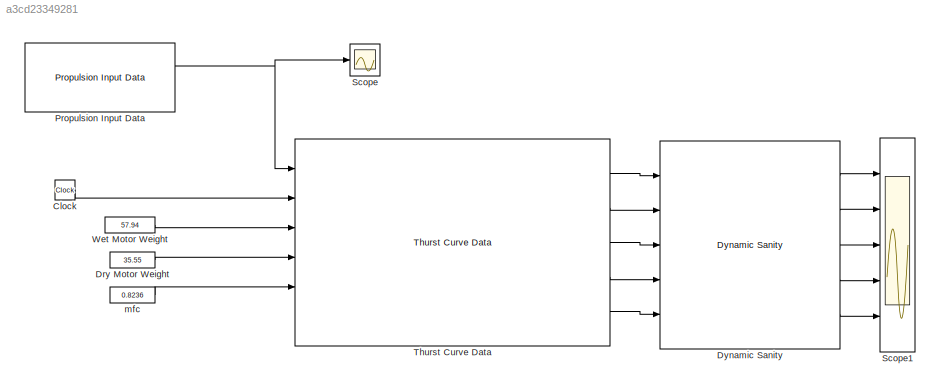
MODEL slx_a3cd23349281
KIND model
BLOCK [Clock] Clock
BLOCK [Constant] Dry Motor Weight
  Value = 35.55
BLOCK [Reference] Dynamic Sanity  REF=rocket_dynamic_data_library/Dynamic Sanity  (lib defined in slx_58be5b8ac4f4)
  Ports = [5, 5]
  SourceBlock = rocket_dynamic_data_library/Dynamic Sanity
  SourceType = SubSystem
BLOCK [Reference] Propulsion Input Data  REF=rocket_dynamic_data_library/Propulsion Input Data  (lib defined in slx_58be5b8ac4f4)
  Ports = [0, 2]
  SourceBlock = rocket_dynamic_data_library/Propulsion Input Data
  SourceType = SubSystem
BLOCK [Scope] Scope
  DataFormat = StructureWithTime
  Floating = off
  NumInputPorts = 1
  Ports = [1]
  SampleTime = 0
  ShowLegends = off
BLOCK [Scope] Scope1
  DataFormat = StructureWithTime
  Floating = off
  NumInputPorts = 5
  Ports = [5]
  SampleTime = 0
  SaveName = ScopeData1
  ShowLegends = off
  YMax = 5~5~5~5~5
  YMin = -5~-5~-5~-5~-5
BLOCK [Reference] Thurst Curve Data  REF=rocket_dynamic_data_library/Thurst Curve Data  (lib defined in slx_58be5b8ac4f4)
  Ports = [6, 5]
  SourceBlock = rocket_dynamic_data_library/Thurst Curve Data
  SourceType = SubSystem
BLOCK [Constant] Wet Motor Weight
  Value = 57.94
BLOCK [Constant] mfc
  Value = 0.8236
LINE Clock:1 -> Thurst Curve Data:2
LINE Dry Motor Weight:1 -> Thurst Curve Data:4
LINE Dynamic Sanity:1 -> Scope1:1
LINE Dynamic Sanity:2 -> Scope1:2
LINE Dynamic Sanity:3 -> Scope1:3
LINE Dynamic Sanity:4 -> Scope1:4
LINE Dynamic Sanity:5 -> Scope1:5
NET Propulsion Input Data:1 -> Scope:1, Thurst Curve Data:1
LINE Thurst Curve Data:1 -> Dynamic Sanity:1
LINE Thurst Curve Data:2 -> Dynamic Sanity:2
LINE Thurst Curve Data:3 -> Dynamic Sanity:3
LINE Thurst Curve Data:4 -> Dynamic Sanity:4
LINE Thurst Curve Data:5 -> Dynamic Sanity:5
LINE Wet Motor Weight:1 -> Thurst Curve Data:3
LINE mfc:1 -> Thurst Curve Data:5
note: NET lines group one-source signal fan-out (src -> all destinations, sorted); 1:1 wires keep LINE
